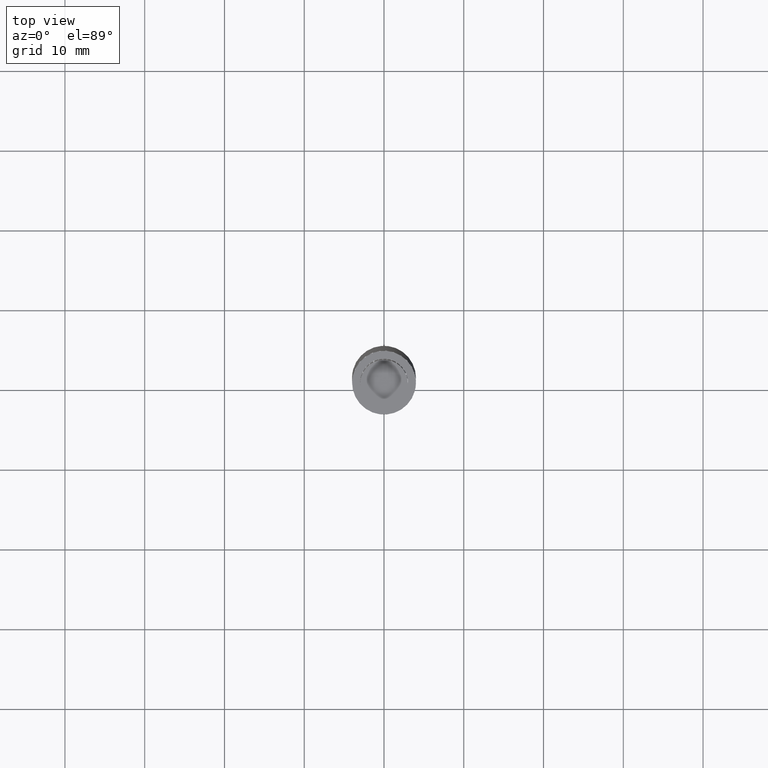
[diagram: clean part render]
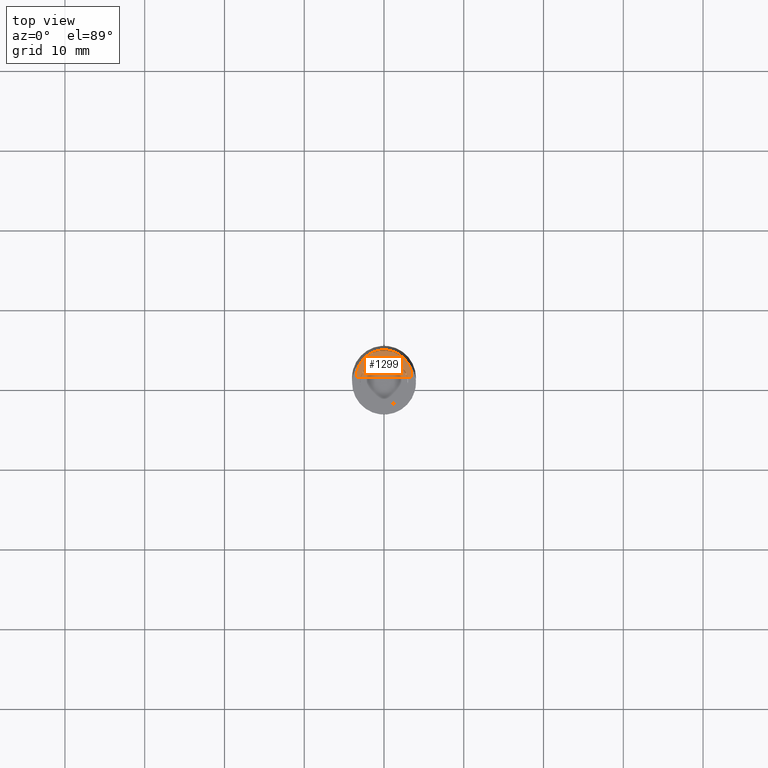
[diagram: same view with one face highlighted and labeled with its STEP entity id]
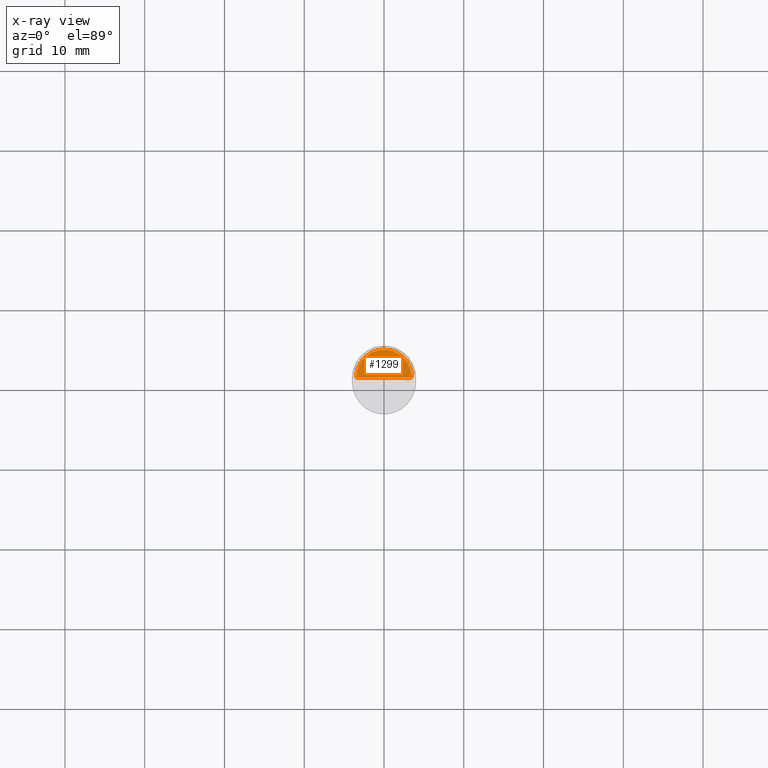
[diagram: x-ray of the same camera — body ghosted, the highlighted face saturated]
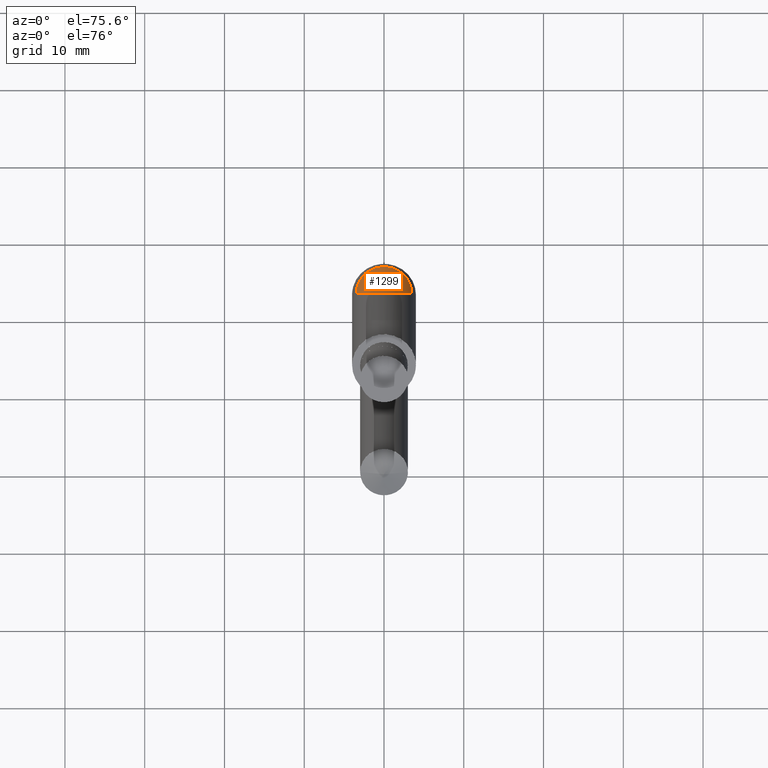
[diagram: same view with one face highlighted and labeled with its STEP entity id]
A machine part, top view. The second image highlights one B-rep face of the part: STEP entity #1299.
The next image is the same camera in x-ray: the body ghosted, the highlighted face saturated — about 0% of this face is hidden behind the body in this view.
A second angle (auxiliary view) of the same face is appended — the face is thin or edge-on in the first view.
In plain terms, the highlighted face is a freeform B-spline surface patch.
Its self-contained STEP definition (entity closure, byte-faithful):
#1034=CARTESIAN_POINT('',(3.5,0.0,36.0));
#1035=CARTESIAN_POINT('',(3.5,3.5,36.0));
#1036=CARTESIAN_POINT('',(0.0,3.5,36.0));
#1037=CARTESIAN_POINT('',(-3.5,3.5,36.0));
#1038=CARTESIAN_POINT('',(-3.5,0.0,36.0));
#1039=CARTESIAN_POINT('',(0.0,0.0,36.0));
#1284=(
BOUNDED_SURFACE()
B_SPLINE_SURFACE(1,2,(
(#1034,#1035,#1036,#1037,#1038),
(#1039,#1039,#1039,#1039,#1039)
), .UNSPECIFIED.,.F.,.F.,.F.)
B_SPLINE_SURFACE_WITH_KNOTS((2,2),(3,2,3),(
0.0,1.0),(
0.0,0.5,1.0), .UNSPECIFIED.)
GEOMETRIC_REPRESENTATION_ITEM()
RATIONAL_B_SPLINE_SURFACE(((1.0,0.707106781187,1.0,0.707106781187,1.0),
(1.0,0.707106781187,1.0,0.707106781187,1.0)
))
REPRESENTATION_ITEM('')
SURFACE()
);
#1285=(
BOUNDED_CURVE()
B_SPLINE_CURVE(2,(#1038,#1037,#1036,#1035,#1034),.UNSPECIFIED.,.F.,.F.)
B_SPLINE_CURVE_WITH_KNOTS((3,2,3),
(0.0,0.5,1.0),.UNSPECIFIED.)
CURVE()
GEOMETRIC_REPRESENTATION_ITEM()
RATIONAL_B_SPLINE_CURVE((1.0,0.707106781187,1.0,0.707106781187,1.0))
REPRESENTATION_ITEM('')
);
#1286=(
BOUNDED_CURVE()
B_SPLINE_CURVE(1,(#1034,#1039),.UNSPECIFIED.,.F.,.F.)
B_SPLINE_CURVE_WITH_KNOTS((2,2),
(0.0,1.0),.UNSPECIFIED.)
CURVE()
GEOMETRIC_REPRESENTATION_ITEM()
RATIONAL_B_SPLINE_CURVE((1.0,1.0))
REPRESENTATION_ITEM('')
);
#1287=(
BOUNDED_CURVE()
B_SPLINE_CURVE(1,(#1039,#1038),.UNSPECIFIED.,.F.,.F.)
B_SPLINE_CURVE_WITH_KNOTS((2,2),
(0.0,1.0),.UNSPECIFIED.)
CURVE()
GEOMETRIC_REPRESENTATION_ITEM()
RATIONAL_B_SPLINE_CURVE((1.0,1.0))
REPRESENTATION_ITEM('')
);
#1288=VERTEX_POINT('',#1034);
#1289=VERTEX_POINT('',#1038);
#1290=VERTEX_POINT('',#1039);
#1291=EDGE_CURVE('',#1289,#1288,#1285,.T.);
#1292=EDGE_CURVE('',#1288,#1290,#1286,.T.);
#1293=EDGE_CURVE('',#1290,#1289,#1287,.T.);
#1294=ORIENTED_EDGE('',*,*,#1291,.T.);
#1295=ORIENTED_EDGE('',*,*,#1292,.T.);
#1296=ORIENTED_EDGE('',*,*,#1293,.T.);
#1297=EDGE_LOOP('',(#1294,#1295,#1296));
#1298=FACE_OUTER_BOUND('',#1297,.T.);
#1299=ADVANCED_FACE('',(#1298),#1284,.T.);